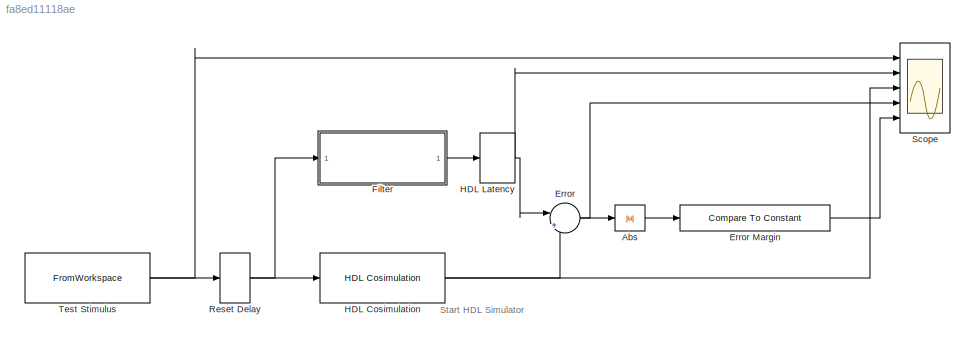
MODEL slx_fa8ed11118ae
KIND model
CONFIG AbsTol = auto
CONFIG EnableMultiTasking = off
CONFIG FixedStep = auto
CONFIG MaxStep = auto
CONFIG MinStep = auto
CONFIG RelTol = 1e-3
CONFIG SampleTimeConstraint = Unconstrained
CONFIG SolverName = FixedStepDiscrete
CONFIG StartTime = 0.0
CONFIG StopTime = 4402*Ts
WORKSPACE source: mxarray member
WORKSPACE ErrMarginBits = 4
WORKSPACE Ts = 10
WORKSPACE inputdata: object (value not decoded)
WORKSPACE latency = 7
WORKSPACE resetdelay = 3
BLOCK [Abs] Abs
BLOCK [Sum] Error
  Inputs = ||+|-
  NameLocation = top
  OutDataTypeStr = Inherit: Same as accumulator
  Ports = [2, 1]
BLOCK [Reference] Error Margin  REF=simulink/Logic and Bit
Operations/Compare
To Constant
  Ports = [1, 1]
  SourceBlock = simulink/Logic and Bit\nOperations/Compare\nTo Constant
  SourceProductBaseCode = SL
  SourceType = Compare To Constant
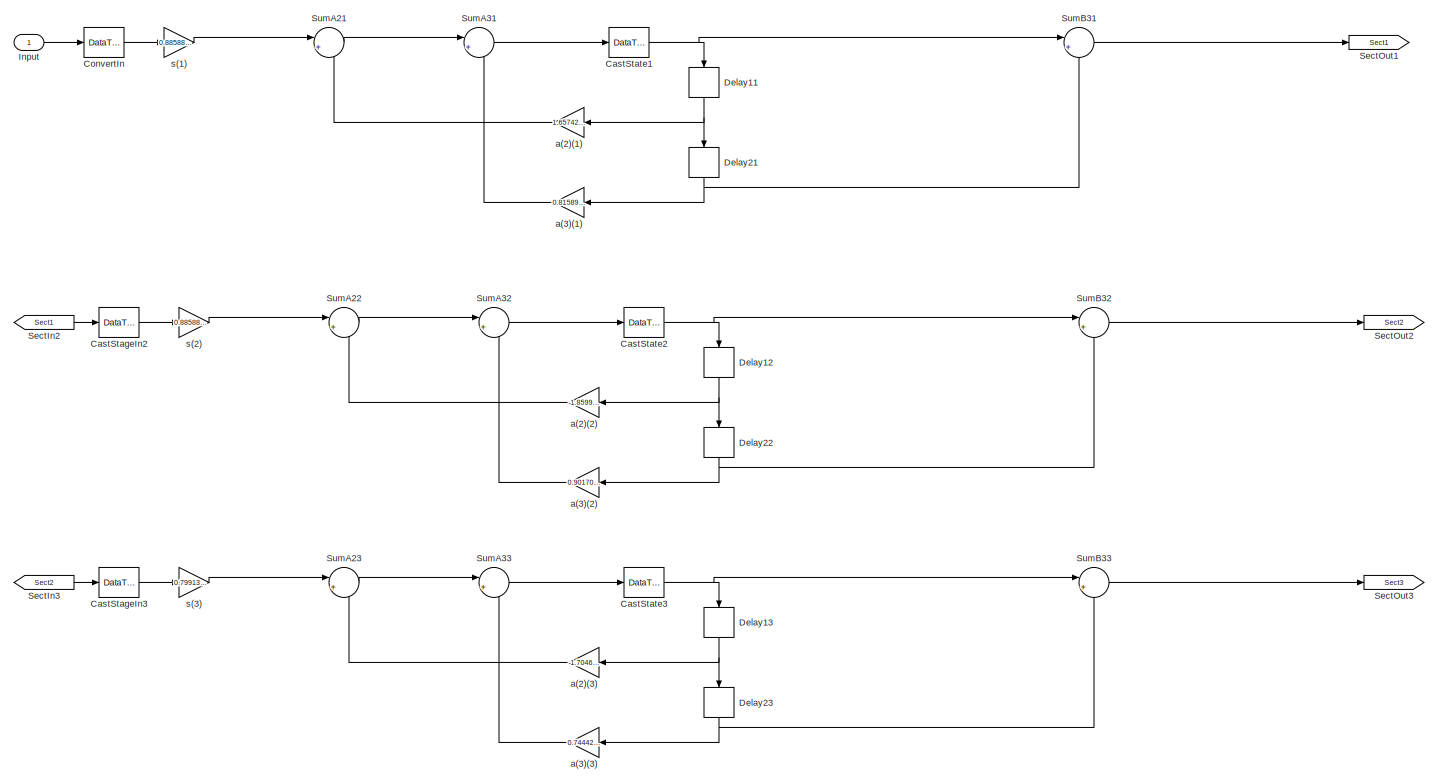
[diagram: Filter - part 1/2, full width, top band]
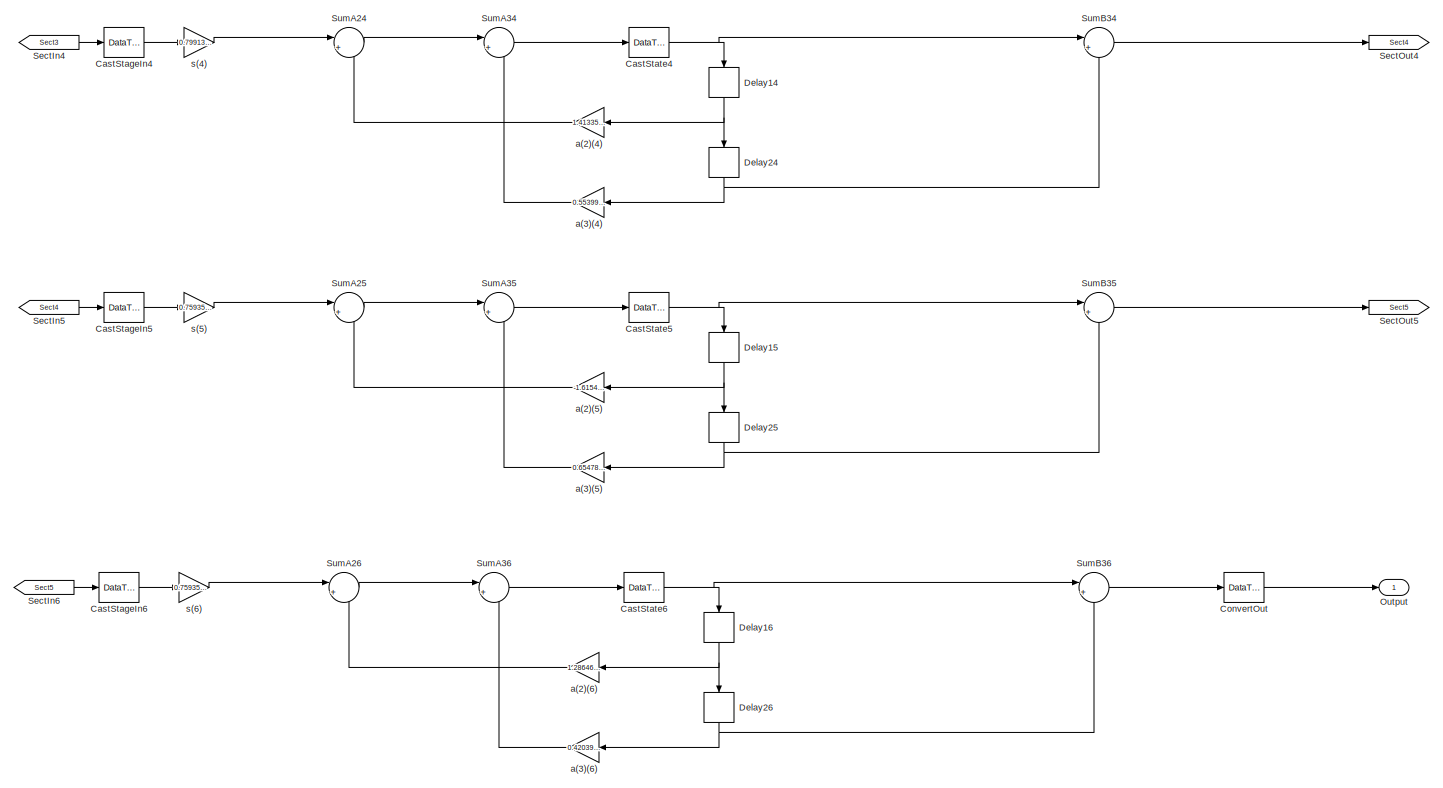
[diagram: Filter - part 2/2, full width, bottom band]
BLOCK [SubSystem] Filter
  ErrorFcn = dspFilterRealizedInBasicElemsAlgLoopErrFcnCallback
  Ports = [1, 1]
  RequestExecContextInheritance = off
  Tag = FilterWizardSubSystem
  UserDataPersistent = on
BLOCK [DataTypeConversion] Filter/CastStageIn2
  OutDataTypeStr = fixdt(1,12,8)
  RndMeth = Convergent
BLOCK [DataTypeConversion] Filter/CastStageIn3
  OutDataTypeStr = fixdt(1,12,8)
  RndMeth = Convergent
BLOCK [DataTypeConversion] Filter/CastStageIn4
  OutDataTypeStr = fixdt(1,12,8)
  RndMeth = Convergent
BLOCK [DataTypeConversion] Filter/CastStageIn5
  OutDataTypeStr = fixdt(1,12,8)
  RndMeth = Convergent
BLOCK [DataTypeConversion] Filter/CastStageIn6
  OutDataTypeStr = fixdt(1,12,8)
  RndMeth = Convergent
BLOCK [DataTypeConversion] Filter/CastState1
  OutDataTypeStr = fixdt(1,12,12)
  RndMeth = Convergent
BLOCK [DataTypeConversion] Filter/CastState2
  OutDataTypeStr = fixdt(1,12,12)
  RndMeth = Convergent
BLOCK [DataTypeConversion] Filter/CastState3
  OutDataTypeStr = fixdt(1,12,12)
  RndMeth = Convergent
BLOCK [DataTypeConversion] Filter/CastState4
  OutDataTypeStr = fixdt(1,12,12)
  RndMeth = Convergent
BLOCK [DataTypeConversion] Filter/CastState5
  OutDataTypeStr = fixdt(1,12,12)
  RndMeth = Convergent
BLOCK [DataTypeConversion] Filter/CastState6
  OutDataTypeStr = fixdt(1,12,12)
  RndMeth = Convergent
BLOCK [DataTypeConversion] Filter/ConvertIn
  OutDataTypeStr = fixdt(1,12,0)
  RndMeth = Nearest
BLOCK [DataTypeConversion] Filter/ConvertOut
  OutDataTypeStr = fixdt(1,12,8)
  RndMeth = Convergent
BLOCK [Delay] Filter/Delay11
  DelayLength = 1
  InitialCondition = 0
  InputPortMap = u0
  NameLocation = right
  Ports = [1, 1]
BLOCK [Delay] Filter/Delay12
  DelayLength = 1
  InitialCondition = 0
  InputPortMap = u0
  NameLocation = right
  Ports = [1, 1]
BLOCK [Delay] Filter/Delay13
  DelayLength = 1
  InitialCondition = 0
  InputPortMap = u0
  NameLocation = right
  Ports = [1, 1]
BLOCK [Delay] Filter/Delay14
  DelayLength = 1
  InitialCondition = 0
  InputPortMap = u0
  NameLocation = right
  Ports = [1, 1]
BLOCK [Delay] Filter/Delay15
  DelayLength = 1
  InitialCondition = 0
  InputPortMap = u0
  NameLocation = right
  Ports = [1, 1]
BLOCK [Delay] Filter/Delay16
  DelayLength = 1
  InitialCondition = 0
  InputPortMap = u0
  NameLocation = right
  Ports = [1, 1]
BLOCK [Delay] Filter/Delay21
  DelayLength = 1
  InitialCondition = 0
  InputPortMap = u0
  NameLocation = right
  Ports = [1, 1]
BLOCK [Delay] Filter/Delay22
  DelayLength = 1
  InitialCondition = 0
  InputPortMap = u0
  NameLocation = right
  Ports = [1, 1]
BLOCK [Delay] Filter/Delay23
  DelayLength = 1
  InitialCondition = 0
  InputPortMap = u0
  NameLocation = right
  Ports = [1, 1]
BLOCK [Delay] Filter/Delay24
  DelayLength = 1
  InitialCondition = 0
  InputPortMap = u0
  NameLocation = right
  Ports = [1, 1]
BLOCK [Delay] Filter/Delay25
  DelayLength = 1
  InitialCondition = 0
  InputPortMap = u0
  NameLocation = right
  Ports = [1, 1]
BLOCK [Delay] Filter/Delay26
  DelayLength = 1
  InitialCondition = 0
  InputPortMap = u0
  NameLocation = right
  Ports = [1, 1]
BLOCK [Inport] Filter/Input
BLOCK [Outport] Filter/Output
BLOCK [From] Filter/SectIn2
  GotoTag = Sect1
BLOCK [From] Filter/SectIn3
  GotoTag = Sect2
BLOCK [From] Filter/SectIn4
  GotoTag = Sect3
BLOCK [From] Filter/SectIn5
  GotoTag = Sect4
BLOCK [From] Filter/SectIn6
  GotoTag = Sect5
BLOCK [Goto] Filter/SectOut1
  GotoTag = Sect1
BLOCK [Goto] Filter/SectOut2
  GotoTag = Sect2
BLOCK [Goto] Filter/SectOut3
  GotoTag = Sect3
BLOCK [Goto] Filter/SectOut4
  GotoTag = Sect4
BLOCK [Goto] Filter/SectOut5
  GotoTag = Sect5
BLOCK [Sum] Filter/SumA21
  AccumDataTypeStr = fixdt(1,40,22)
  Inputs = |+-
  OutDataTypeStr = fixdt(1,40,22)
  Ports = [2, 1]
  RndMeth = Convergent
  SaturateOnIntegerOverflow = on
BLOCK [Sum] Filter/SumA22
  AccumDataTypeStr = fixdt(1,40,22)
  Inputs = |+-
  OutDataTypeStr = fixdt(1,40,22)
  Ports = [2, 1]
  RndMeth = Convergent
  SaturateOnIntegerOverflow = on
BLOCK [Sum] Filter/SumA23
  AccumDataTypeStr = fixdt(1,40,22)
  Inputs = |+-
  OutDataTypeStr = fixdt(1,40,22)
  Ports = [2, 1]
  RndMeth = Convergent
  SaturateOnIntegerOverflow = on
BLOCK [Sum] Filter/SumA24
  AccumDataTypeStr = fixdt(1,40,22)
  Inputs = |+-
  OutDataTypeStr = fixdt(1,40,22)
  Ports = [2, 1]
  RndMeth = Convergent
  SaturateOnIntegerOverflow = on
BLOCK [Sum] Filter/SumA25
  AccumDataTypeStr = fixdt(1,40,22)
  Inputs = |+-
  OutDataTypeStr = fixdt(1,40,22)
  Ports = [2, 1]
  RndMeth = Convergent
  SaturateOnIntegerOverflow = on
BLOCK [Sum] Filter/SumA26
  AccumDataTypeStr = fixdt(1,40,22)
  Inputs = |+-
  OutDataTypeStr = fixdt(1,40,22)
  Ports = [2, 1]
  RndMeth = Convergent
  SaturateOnIntegerOverflow = on
BLOCK [Sum] Filter/SumA31
  AccumDataTypeStr = fixdt(1,40,22)
  Inputs = |+-
  OutDataTypeStr = fixdt(1,40,22)
  Ports = [2, 1]
  RndMeth = Convergent
  SaturateOnIntegerOverflow = on
BLOCK [Sum] Filter/SumA32
  AccumDataTypeStr = fixdt(1,40,22)
  Inputs = |+-
  OutDataTypeStr = fixdt(1,40,22)
  Ports = [2, 1]
  RndMeth = Convergent
  SaturateOnIntegerOverflow = on
BLOCK [Sum] Filter/SumA33
  AccumDataTypeStr = fixdt(1,40,22)
  Inputs = |+-
  OutDataTypeStr = fixdt(1,40,22)
  Ports = [2, 1]
  RndMeth = Convergent
  SaturateOnIntegerOverflow = on
BLOCK [Sum] Filter/SumA34
  AccumDataTypeStr = fixdt(1,40,22)
  Inputs = |+-
  OutDataTypeStr = fixdt(1,40,22)
  Ports = [2, 1]
  RndMeth = Convergent
  SaturateOnIntegerOverflow = on
BLOCK [Sum] Filter/SumA35
  AccumDataTypeStr = fixdt(1,40,22)
  Inputs = |+-
  OutDataTypeStr = fixdt(1,40,22)
  Ports = [2, 1]
  RndMeth = Convergent
  SaturateOnIntegerOverflow = on
BLOCK [Sum] Filter/SumA36
  AccumDataTypeStr = fixdt(1,40,22)
  Inputs = |+-
  OutDataTypeStr = fixdt(1,40,22)
  Ports = [2, 1]
  RndMeth = Convergent
  SaturateOnIntegerOverflow = on
BLOCK [Sum] Filter/SumB31
  AccumDataTypeStr = fixdt(1,40,22)
  Inputs = |+-
  OutDataTypeStr = fixdt(1,40,22)
  Ports = [2, 1]
  RndMeth = Convergent
  SaturateOnIntegerOverflow = on
BLOCK [Sum] Filter/SumB32
  AccumDataTypeStr = fixdt(1,40,22)
  Inputs = |+-
  OutDataTypeStr = fixdt(1,40,22)
  Ports = [2, 1]
  RndMeth = Convergent
  SaturateOnIntegerOverflow = on
BLOCK [Sum] Filter/SumB33
  AccumDataTypeStr = fixdt(1,40,22)
  Inputs = |+-
  OutDataTypeStr = fixdt(1,40,22)
  Ports = [2, 1]
  RndMeth = Convergent
  SaturateOnIntegerOverflow = on
BLOCK [Sum] Filter/SumB34
  AccumDataTypeStr = fixdt(1,40,22)
  Inputs = |+-
  OutDataTypeStr = fixdt(1,40,22)
  Ports = [2, 1]
  RndMeth = Convergent
  SaturateOnIntegerOverflow = on
BLOCK [Sum] Filter/SumB35
  AccumDataTypeStr = fixdt(1,40,22)
  Inputs = |+-
  OutDataTypeStr = fixdt(1,40,22)
  Ports = [2, 1]
  RndMeth = Convergent
  SaturateOnIntegerOverflow = on
BLOCK [Sum] Filter/SumB36
  AccumDataTypeStr = fixdt(1,40,22)
  Inputs = |+-
  OutDataTypeStr = fixdt(1,40,22)
  Ports = [2, 1]
  RndMeth = Convergent
  SaturateOnIntegerOverflow = on
BLOCK [Gain] Filter/a(2)(1)
  Gain = 1.65742528830292724
  OutDataTypeStr = fixdt(1,24,22)
  ParamDataTypeStr = fixdt(1,12,10)
  RndMeth = Convergent
  SaturateOnIntegerOverflow = on
BLOCK [Gain] Filter/a(2)(2)
  Gain = -1.85998922851952742
  OutDataTypeStr = fixdt(1,24,22)
  ParamDataTypeStr = fixdt(1,12,10)
  RndMeth = Convergent
  SaturateOnIntegerOverflow = on
BLOCK [Gain] Filter/a(2)(3)
  Gain = -1.70469105875488869
  OutDataTypeStr = fixdt(1,24,22)
  ParamDataTypeStr = fixdt(1,12,10)
  RndMeth = Convergent
  SaturateOnIntegerOverflow = on
BLOCK [Gain] Filter/a(2)(4)
  Gain = 1.41335332460150043
  OutDataTypeStr = fixdt(1,24,22)
  ParamDataTypeStr = fixdt(1,12,10)
  RndMeth = Convergent
  SaturateOnIntegerOverflow = on
BLOCK [Gain] Filter/a(2)(5)
  Gain = -1.61545832429382541
  OutDataTypeStr = fixdt(1,24,22)
  ParamDataTypeStr = fixdt(1,12,10)
  RndMeth = Convergent
  SaturateOnIntegerOverflow = on
BLOCK [Gain] Filter/a(2)(6)
  Gain = 1.28646306613610628
  OutDataTypeStr = fixdt(1,24,22)
  ParamDataTypeStr = fixdt(1,12,10)
  RndMeth = Convergent
  SaturateOnIntegerOverflow = on
BLOCK [Gain] Filter/a(3)(1)
  Gain = 0.815897372432069612
  OutDataTypeStr = fixdt(1,24,22)
  ParamDataTypeStr = fixdt(1,12,10)
  RndMeth = Convergent
  SaturateOnIntegerOverflow = on
BLOCK [Gain] Filter/a(3)(2)
  Gain = 0.901702779731603621
  OutDataTypeStr = fixdt(1,24,22)
  ParamDataTypeStr = fixdt(1,12,10)
  RndMeth = Convergent
  SaturateOnIntegerOverflow = on
BLOCK [Gain] Filter/a(3)(3)
  Gain = 0.744422984879922978
  OutDataTypeStr = fixdt(1,24,22)
  ParamDataTypeStr = fixdt(1,12,10)
  RndMeth = Convergent
  SaturateOnIntegerOverflow = on
BLOCK [Gain] Filter/a(3)(4)
  Gain = 0.553995092737038175
  OutDataTypeStr = fixdt(1,24,22)
  ParamDataTypeStr = fixdt(1,12,10)
  RndMeth = Convergent
  SaturateOnIntegerOverflow = on
BLOCK [Gain] Filter/a(3)(5)
  Gain = 0.654784747265885092
  OutDataTypeStr = fixdt(1,24,22)
  ParamDataTypeStr = fixdt(1,12,10)
  RndMeth = Convergent
  SaturateOnIntegerOverflow = on
BLOCK [Gain] Filter/a(3)(6)
  Gain = 0.420394826751919415
  OutDataTypeStr = fixdt(1,24,22)
  ParamDataTypeStr = fixdt(1,12,10)
  RndMeth = Convergent
  SaturateOnIntegerOverflow = on
BLOCK [Gain] Filter/s(1)
  Gain = 0.885889217627322534
  OutDataTypeStr = fixdt(1,12,7)
  ParamDataTypeStr = fixdt(1,12,11)
  RndMeth = Convergent
  SaturateOnIntegerOverflow = on
BLOCK [Gain] Filter/s(2)
  Gain = 0.885889217627322534
  OutDataTypeStr = fixdt(1,12,7)
  ParamDataTypeStr = fixdt(1,12,11)
  RndMeth = Convergent
  SaturateOnIntegerOverflow = on
BLOCK [Gain] Filter/s(3)
  Gain = 0.799139044168098667
  OutDataTypeStr = fixdt(1,12,7)
  ParamDataTypeStr = fixdt(1,12,11)
  RndMeth = Convergent
  SaturateOnIntegerOverflow = on
BLOCK [Gain] Filter/s(4)
  Gain = 0.799139044168098667
  OutDataTypeStr = fixdt(1,12,7)
  ParamDataTypeStr = fixdt(1,12,11)
  RndMeth = Convergent
  SaturateOnIntegerOverflow = on
BLOCK [Gain] Filter/s(5)
  Gain = 0.759352137722818288
  OutDataTypeStr = fixdt(1,12,7)
  ParamDataTypeStr = fixdt(1,12,11)
  RndMeth = Convergent
  SaturateOnIntegerOverflow = on
BLOCK [Gain] Filter/s(6)
  Gain = 0.759352137722818288
  OutDataTypeStr = fixdt(1,12,7)
  ParamDataTypeStr = fixdt(1,12,11)
  RndMeth = Convergent
  SaturateOnIntegerOverflow = on
BLOCK [Reference] HDL Cosimulation  REF=modelsimlib/HDL Cosimulation
  Ports = [1, 1]
  SourceBlock = modelsimlib/HDL Cosimulation
  SourceProductBaseCode = ES
  SourceType = Simulink and ModelSim Cosimulation
BLOCK [Delay] HDL Latency
  DelayLength = latency
  InputPortMap = u0
  Ports = [1, 1]
BLOCK [Delay] Reset Delay
  DelayLength = resetdelay
  InputPortMap = u0
  Ports = [1, 1]
BLOCK [Scope] Scope
  Floating = off
  NumInputPorts = 5
  Ports = [5]
  ScopeSpecificationString = Simulink.scopes.TimeScopeBlockCfg('CurrentConfiguration', extmgr.ConfigurationSet(extmgr.Configuration('Core','General UI',true),extmgr.Configuration('Core','Source UI',true),extmgr.Configuration('Sources','WiredSimulink',true),extmgr.Configuration('Visuals','Time Domain',true,'SerializedDisplays',{struct('MinYLimReal','-10','MaxYLimReal','10','YLabelReal','','MinYLimMag','0','MaxYLimMag','10','Le...<+4224ch>
BLOCK [FromWorkspace] Test Stimulus
  Interpolate = off
  OutputAfterFinalValue = Setting to zero
  SampleTime = Ts
  VariableName = inputdata
ANNOTATION (root): Start HDL Simulator
LINE Abs:1 -> Error Margin:1
LINE Error Margin:1 -> Scope:5
NET Error:1 -> Abs:1, Scope:4
LINE Filter/CastStageIn2:1 -> Filter/s(2):1
LINE Filter/CastStageIn3:1 -> Filter/s(3):1
LINE Filter/CastStageIn4:1 -> Filter/s(4):1
LINE Filter/CastStageIn5:1 -> Filter/s(5):1
LINE Filter/CastStageIn6:1 -> Filter/s(6):1
NET Filter/CastState1:1 -> Filter/Delay11:1, Filter/SumB31:1
NET Filter/CastState2:1 -> Filter/Delay12:1, Filter/SumB32:1
NET Filter/CastState3:1 -> Filter/Delay13:1, Filter/SumB33:1
NET Filter/CastState4:1 -> Filter/Delay14:1, Filter/SumB34:1
NET Filter/CastState5:1 -> Filter/Delay15:1, Filter/SumB35:1
NET Filter/CastState6:1 -> Filter/Delay16:1, Filter/SumB36:1
LINE Filter/ConvertIn:1 -> Filter/s(1):1
LINE Filter/ConvertOut:1 -> Filter/Output:1
NET Filter/Delay11:1 -> Filter/Delay21:1, Filter/a(2)(1):1
NET Filter/Delay12:1 -> Filter/Delay22:1, Filter/a(2)(2):1
NET Filter/Delay13:1 -> Filter/Delay23:1, Filter/a(2)(3):1
NET Filter/Delay14:1 -> Filter/Delay24:1, Filter/a(2)(4):1
NET Filter/Delay15:1 -> Filter/Delay25:1, Filter/a(2)(5):1
NET Filter/Delay16:1 -> Filter/Delay26:1, Filter/a(2)(6):1
NET Filter/Delay21:1 -> Filter/SumB31:2, Filter/a(3)(1):1
NET Filter/Delay22:1 -> Filter/SumB32:2, Filter/a(3)(2):1
NET Filter/Delay23:1 -> Filter/SumB33:2, Filter/a(3)(3):1
NET Filter/Delay24:1 -> Filter/SumB34:2, Filter/a(3)(4):1
NET Filter/Delay25:1 -> Filter/SumB35:2, Filter/a(3)(5):1
NET Filter/Delay26:1 -> Filter/SumB36:2, Filter/a(3)(6):1
LINE Filter/Input:1 -> Filter/ConvertIn:1
LINE Filter/SectIn2:1 -> Filter/CastStageIn2:1
LINE Filter/SectIn3:1 -> Filter/CastStageIn3:1
LINE Filter/SectIn4:1 -> Filter/CastStageIn4:1
LINE Filter/SectIn5:1 -> Filter/CastStageIn5:1
LINE Filter/SectIn6:1 -> Filter/CastStageIn6:1
LINE Filter/SumA21:1 -> Filter/SumA31:1
LINE Filter/SumA22:1 -> Filter/SumA32:1
LINE Filter/SumA23:1 -> Filter/SumA33:1
LINE Filter/SumA24:1 -> Filter/SumA34:1
LINE Filter/SumA25:1 -> Filter/SumA35:1
LINE Filter/SumA26:1 -> Filter/SumA36:1
LINE Filter/SumA31:1 -> Filter/CastState1:1
LINE Filter/SumA32:1 -> Filter/CastState2:1
LINE Filter/SumA33:1 -> Filter/CastState3:1
LINE Filter/SumA34:1 -> Filter/CastState4:1
LINE Filter/SumA35:1 -> Filter/CastState5:1
LINE Filter/SumA36:1 -> Filter/CastState6:1
LINE Filter/SumB31:1 -> Filter/SectOut1:1
LINE Filter/SumB32:1 -> Filter/SectOut2:1
LINE Filter/SumB33:1 -> Filter/SectOut3:1
LINE Filter/SumB34:1 -> Filter/SectOut4:1
LINE Filter/SumB35:1 -> Filter/SectOut5:1
LINE Filter/SumB36:1 -> Filter/ConvertOut:1
LINE Filter/a(2)(1):1 -> Filter/SumA21:2
LINE Filter/a(2)(2):1 -> Filter/SumA22:2
LINE Filter/a(2)(3):1 -> Filter/SumA23:2
LINE Filter/a(2)(4):1 -> Filter/SumA24:2
LINE Filter/a(2)(5):1 -> Filter/SumA25:2
LINE Filter/a(2)(6):1 -> Filter/SumA26:2
LINE Filter/a(3)(1):1 -> Filter/SumA31:2
LINE Filter/a(3)(2):1 -> Filter/SumA32:2
LINE Filter/a(3)(3):1 -> Filter/SumA33:2
LINE Filter/a(3)(4):1 -> Filter/SumA34:2
LINE Filter/a(3)(5):1 -> Filter/SumA35:2
LINE Filter/a(3)(6):1 -> Filter/SumA36:2
LINE Filter/s(1):1 -> Filter/SumA21:1
LINE Filter/s(2):1 -> Filter/SumA22:1
LINE Filter/s(3):1 -> Filter/SumA23:1
LINE Filter/s(4):1 -> Filter/SumA24:1
LINE Filter/s(5):1 -> Filter/SumA25:1
LINE Filter/s(6):1 -> Filter/SumA26:1
LINE Filter:1 -> HDL Latency:1
NET HDL Cosimulation:1 -> Error:2, Scope:3
NET HDL Latency:1 -> Error:1, Scope:2
NET Reset Delay:1 -> Filter:1, HDL Cosimulation:1
NET Test Stimulus:1 -> Reset Delay:1, Scope:1
note: NET lines group one-source signal fan-out (src -> all destinations, sorted); 1:1 wires keep LINE
